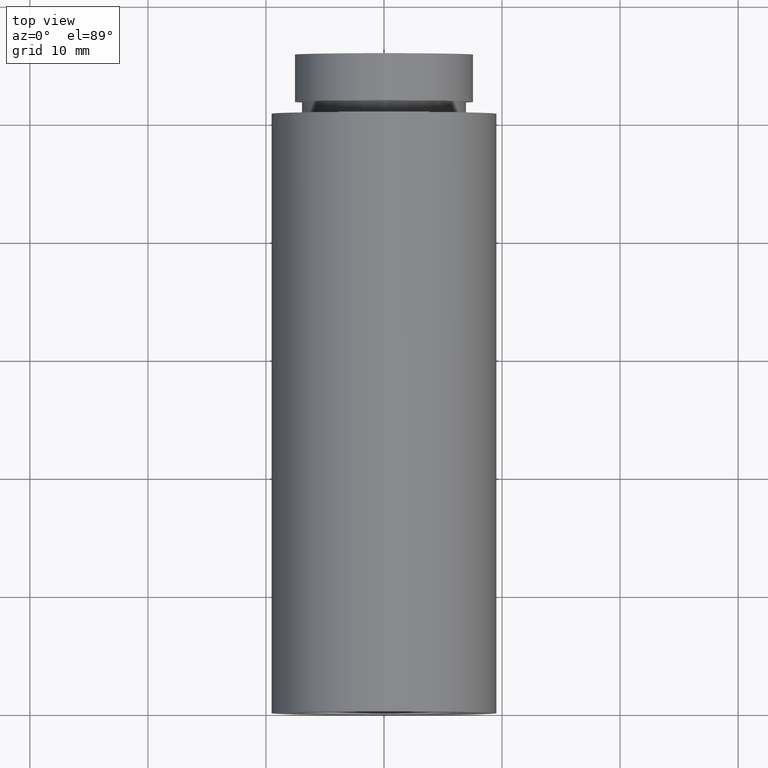
[diagram: clean part render]
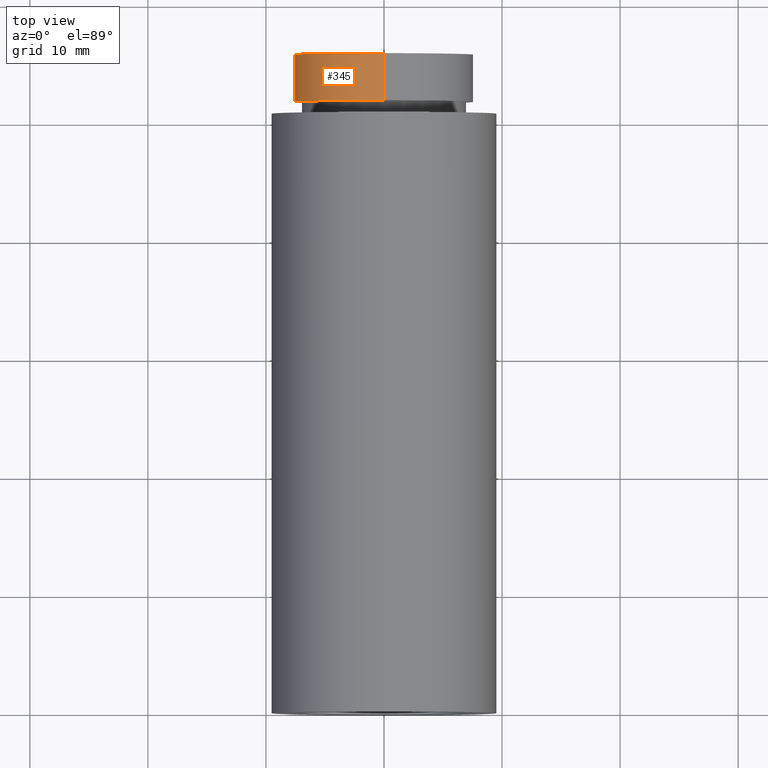
[diagram: same view with one face highlighted and labeled with its STEP entity id]
A machine part, top view. The second image highlights one B-rep face of the part: STEP entity #345.
In plain terms, the highlighted cylindrical surface (partial cylindrical patch) has radius 7.6 mm, axis along (-0, 1, -0).
Its self-contained STEP definition (entity closure, byte-faithful):
#8 = LINE ( 'NONE', #203, #539 ) ;
#28 = CARTESIAN_POINT ( 'NONE',  ( 0.0000000000000000000, 161.3761669434274500, 7.600000000000010300 ) ) ;
#39 = FACE_OUTER_BOUND ( 'NONE', #520, .T. ) ;
#45 = CARTESIAN_POINT ( 'NONE',  ( 0.0000000000000000000, 51.79999999999998300, 0.0000000000000000000 ) ) ;
#55 = ORIENTED_EDGE ( 'NONE', *, *, #449, .F. ) ;
#68 = VECTOR ( 'NONE', #392, 1000.000000000000000 ) ;
#72 = CARTESIAN_POINT ( 'NONE',  ( 0.0000000000000000000, 51.79999999999998300, 7.600000000000010300 ) ) ;
#74 = EDGE_CURVE ( 'NONE', #79, #356, #209, .T. ) ;
#79 = VERTEX_POINT ( 'NONE', #171 ) ;
#102 = DIRECTION ( 'NONE',  ( -0.0000000000000000000, 1.000000000000000000, -0.0000000000000000000 ) ) ;
#138 = CARTESIAN_POINT ( 'NONE',  ( 0.0000000000000000000, 55.79999999999997600, 0.0000000000000000000 ) ) ;
#164 = AXIS2_PLACEMENT_3D ( 'NONE', #45, #561, #324 ) ;
#169 = AXIS2_PLACEMENT_3D ( 'NONE', #202, #290, #379 ) ;
#171 = CARTESIAN_POINT ( 'NONE',  ( 9.307315673519897300E-016, 51.79999999999998300, -7.600000000000010300 ) ) ;
#202 = CARTESIAN_POINT ( 'NONE',  ( 0.0000000000000000000, 161.3761669434274500, 0.0000000000000000000 ) ) ;
#203 = CARTESIAN_POINT ( 'NONE',  ( 9.307315673519897300E-016, 161.3761669434274500, -7.600000000000010300 ) ) ;
#209 = CIRCLE ( 'NONE', #164, 7.600000000000010300 ) ;
#231 = LINE ( 'NONE', #28, #68 ) ;
#239 = DIRECTION ( 'NONE',  ( 0.0000000000000000000, 0.0000000000000000000, 1.000000000000000000 ) ) ;
#240 = CARTESIAN_POINT ( 'NONE',  ( 9.307315673519897300E-016, 55.79999999999997600, -7.600000000000010300 ) ) ;
#286 = ORIENTED_EDGE ( 'NONE', *, *, #590, .F. ) ;
#290 = DIRECTION ( 'NONE',  ( -0.0000000000000000000, 1.000000000000000000, -0.0000000000000000000 ) ) ;
#297 = VERTEX_POINT ( 'NONE', #515 ) ;
#306 = ORIENTED_EDGE ( 'NONE', *, *, #388, .T. ) ;
#317 = VERTEX_POINT ( 'NONE', #240 ) ;
#324 = DIRECTION ( 'NONE',  ( 0.0000000000000000000, 0.0000000000000000000, 1.000000000000000000 ) ) ;
#345 = ADVANCED_FACE ( 'NONE', ( #39 ), #435, .T. ) ;
#356 = VERTEX_POINT ( 'NONE', #72 ) ;
#374 = DIRECTION ( 'NONE',  ( -0.0000000000000000000, 1.000000000000000000, -0.0000000000000000000 ) ) ;
#379 = DIRECTION ( 'NONE',  ( 0.0000000000000000000, 0.0000000000000000000, 1.000000000000000000 ) ) ;
#388 = EDGE_CURVE ( 'NONE', #356, #297, #231, .T. ) ;
#392 = DIRECTION ( 'NONE',  ( -0.0000000000000000000, 1.000000000000000000, -0.0000000000000000000 ) ) ;
#435 = CYLINDRICAL_SURFACE ( 'NONE', #169, 7.600000000000010300 ) ;
#445 = ORIENTED_EDGE ( 'NONE', *, *, #74, .T. ) ;
#449 = EDGE_CURVE ( 'NONE', #317, #297, #601, .T. ) ;
#465 = AXIS2_PLACEMENT_3D ( 'NONE', #138, #374, #239 ) ;
#515 = CARTESIAN_POINT ( 'NONE',  ( 0.0000000000000000000, 55.79999999999997600, 7.600000000000010300 ) ) ;
#520 = EDGE_LOOP ( 'NONE', ( #286, #445, #306, #55 ) ) ;
#539 = VECTOR ( 'NONE', #102, 1000.000000000000000 ) ;
#561 = DIRECTION ( 'NONE',  ( -0.0000000000000000000, 1.000000000000000000, -0.0000000000000000000 ) ) ;
#590 = EDGE_CURVE ( 'NONE', #79, #317, #8, .T. ) ;
#601 = CIRCLE ( 'NONE', #465, 7.600000000000010300 ) ;